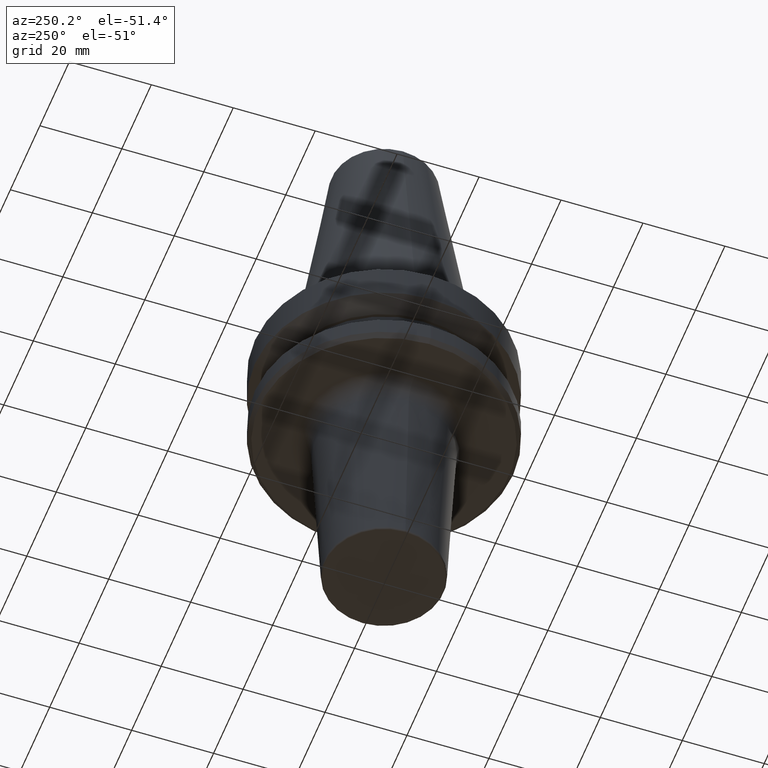
[diagram: clean part render]
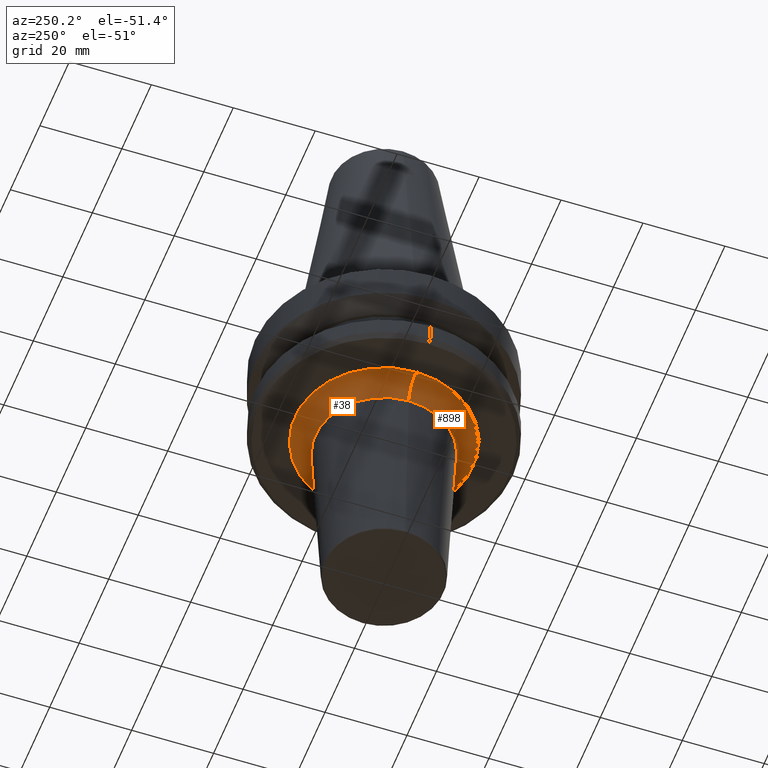
[diagram: same view with one multi-face feature highlighted, each face labeled with its STEP entity id]
A machine part, auxiliary view. The highlighted faces form ONE feature: a constant-radius fillet chain: 2 tangent blend faces with common blend radius 5 mm. The faces share edges in the B-rep.
Their STEP definitions:
[1] entity #38 (Torus):
#5 = TOROIDAL_SURFACE ( 'NONE', #194, 21.75624609862519400, 5.000000000000001800 ) ;
#38 = ADVANCED_FACE ( 'NONE', ( #896 ), #5, .F. ) ;
#45 = CIRCLE ( 'NONE', #431, 5.000000000000004400 ) ;
#56 = AXIS2_PLACEMENT_3D ( 'NONE', #448, #128, #523 ) ;
#79 = AXIS2_PLACEMENT_3D ( 'NONE', #597, #522, #126 ) ;
#106 = AXIS2_PLACEMENT_3D ( 'NONE', #244, #789, #818 ) ;
#126 = DIRECTION ( 'NONE',  ( 1.000000000000000000, 0.0000000000000000000, 0.0000000000000000000 ) ) ;
#128 = DIRECTION ( 'NONE',  ( 1.224646799147353200E-016, 1.000000000000000000, 0.0000000000000000000 ) ) ;
#149 = CARTESIAN_POINT ( 'NONE',  ( -21.75624609862519400, 2.664371714614343700E-015, -92.40000000000802100 ) ) ;
#194 = AXIS2_PLACEMENT_3D ( 'NONE', #735, #906, #328 ) ;
#205 = EDGE_CURVE ( 'NONE', #300, #855, #45, .T. ) ;
#244 = CARTESIAN_POINT ( 'NONE',  ( 0.0000000000000000000, 0.0000000000000000000, -92.40000000000802100 ) ) ;
#247 = VERTEX_POINT ( 'NONE', #149 ) ;
#256 = EDGE_LOOP ( 'NONE', ( #885, #396, #639, #710 ) ) ;
#300 = VERTEX_POINT ( 'NONE', #340 ) ;
#328 = DIRECTION ( 'NONE',  ( 1.000000000000000000, 0.0000000000000000000, 0.0000000000000000000 ) ) ;
#332 = CARTESIAN_POINT ( 'NONE',  ( -16.76248440423597300, 2.358592000877421900E-015, -97.15031191528855500 ) ) ;
#340 = CARTESIAN_POINT ( 'NONE',  ( 21.75624609862519400, 0.0000000000000000000, -92.40000000000802100 ) ) ;
#364 = CARTESIAN_POINT ( 'NONE',  ( 16.76248440423597300, 0.0000000000000000000, -97.15031191528855500 ) ) ;
#396 = ORIENTED_EDGE ( 'NONE', *, *, #401, .F. ) ;
#401 = EDGE_CURVE ( 'NONE', #300, #247, #670, .T. ) ;
#431 = AXIS2_PLACEMENT_3D ( 'NONE', #538, #528, #461 ) ;
#448 = CARTESIAN_POINT ( 'NONE',  ( -21.75624609862519400, 2.664371714614343700E-015, -97.40000000000802100 ) ) ;
#461 = DIRECTION ( 'NONE',  ( 0.0000000000000000000, 0.0000000000000000000, -1.000000000000000000 ) ) ;
#514 = CIRCLE ( 'NONE', #56, 5.000000000000000900 ) ;
#522 = DIRECTION ( 'NONE',  ( -0.0000000000000000000, -0.0000000000000000000, 1.000000000000000000 ) ) ;
#523 = DIRECTION ( 'NONE',  ( -1.000000000000000000, 1.224646799147353500E-016, 0.0000000000000000000 ) ) ;
#528 = DIRECTION ( 'NONE',  ( 0.0000000000000000000, -1.000000000000000000, 0.0000000000000000000 ) ) ;
#538 = CARTESIAN_POINT ( 'NONE',  ( 21.75624609862519400, 0.0000000000000000000, -97.40000000000802100 ) ) ;
#597 = CARTESIAN_POINT ( 'NONE',  ( 0.0000000000000000000, 0.0000000000000000000, -97.15031191528855500 ) ) ;
#621 = VERTEX_POINT ( 'NONE', #332 ) ;
#639 = ORIENTED_EDGE ( 'NONE', *, *, #205, .T. ) ;
#670 = CIRCLE ( 'NONE', #106, 21.75624609862519400 ) ;
#676 = EDGE_CURVE ( 'NONE', #855, #621, #679, .T. ) ;
#679 = CIRCLE ( 'NONE', #79, 16.76248440423597300 ) ;
#710 = ORIENTED_EDGE ( 'NONE', *, *, #676, .T. ) ;
#735 = CARTESIAN_POINT ( 'NONE',  ( 0.0000000000000000000, 0.0000000000000000000, -97.40000000000802100 ) ) ;
#789 = DIRECTION ( 'NONE',  ( -0.0000000000000000000, -0.0000000000000000000, 1.000000000000000000 ) ) ;
#818 = DIRECTION ( 'NONE',  ( 1.000000000000000000, 0.0000000000000000000, 0.0000000000000000000 ) ) ;
#855 = VERTEX_POINT ( 'NONE', #364 ) ;
#885 = ORIENTED_EDGE ( 'NONE', *, *, #889, .F. ) ;
#889 = EDGE_CURVE ( 'NONE', #247, #621, #514, .T. ) ;
#896 = FACE_OUTER_BOUND ( 'NONE', #256, .T. ) ;
#906 = DIRECTION ( 'NONE',  ( -0.0000000000000000000, -0.0000000000000000000, 1.000000000000000000 ) ) ;
[2] entity #898 (Torus):
#17 = CIRCLE ( 'NONE', #304, 21.75624609862519400 ) ;
#43 = DIRECTION ( 'NONE',  ( 1.000000000000000000, 0.0000000000000000000, 0.0000000000000000000 ) ) ;
#45 = CIRCLE ( 'NONE', #431, 5.000000000000004400 ) ;
#56 = AXIS2_PLACEMENT_3D ( 'NONE', #448, #128, #523 ) ;
#86 = EDGE_LOOP ( 'NONE', ( #1045, #281, #589, #453 ) ) ;
#128 = DIRECTION ( 'NONE',  ( 1.224646799147353200E-016, 1.000000000000000000, 0.0000000000000000000 ) ) ;
#149 = CARTESIAN_POINT ( 'NONE',  ( -21.75624609862519400, 2.664371714614343700E-015, -92.40000000000802100 ) ) ;
#169 = AXIS2_PLACEMENT_3D ( 'NONE', #850, #682, #43 ) ;
#205 = EDGE_CURVE ( 'NONE', #300, #855, #45, .T. ) ;
#247 = VERTEX_POINT ( 'NONE', #149 ) ;
#281 = ORIENTED_EDGE ( 'NONE', *, *, #889, .T. ) ;
#300 = VERTEX_POINT ( 'NONE', #340 ) ;
#304 = AXIS2_PLACEMENT_3D ( 'NONE', #459, #381, #531 ) ;
#332 = CARTESIAN_POINT ( 'NONE',  ( -16.76248440423597300, 2.358592000877421900E-015, -97.15031191528855500 ) ) ;
#340 = CARTESIAN_POINT ( 'NONE',  ( 21.75624609862519400, 0.0000000000000000000, -92.40000000000802100 ) ) ;
#364 = CARTESIAN_POINT ( 'NONE',  ( 16.76248440423597300, 0.0000000000000000000, -97.15031191528855500 ) ) ;
#381 = DIRECTION ( 'NONE',  ( -0.0000000000000000000, -0.0000000000000000000, 1.000000000000000000 ) ) ;
#395 = DIRECTION ( 'NONE',  ( 1.000000000000000000, 0.0000000000000000000, 0.0000000000000000000 ) ) ;
#431 = AXIS2_PLACEMENT_3D ( 'NONE', #538, #528, #461 ) ;
#448 = CARTESIAN_POINT ( 'NONE',  ( -21.75624609862519400, 2.664371714614343700E-015, -97.40000000000802100 ) ) ;
#453 = ORIENTED_EDGE ( 'NONE', *, *, #205, .F. ) ;
#459 = CARTESIAN_POINT ( 'NONE',  ( 0.0000000000000000000, 0.0000000000000000000, -92.40000000000802100 ) ) ;
#461 = DIRECTION ( 'NONE',  ( 0.0000000000000000000, 0.0000000000000000000, -1.000000000000000000 ) ) ;
#514 = CIRCLE ( 'NONE', #56, 5.000000000000000900 ) ;
#523 = DIRECTION ( 'NONE',  ( -1.000000000000000000, 1.224646799147353500E-016, 0.0000000000000000000 ) ) ;
#528 = DIRECTION ( 'NONE',  ( 0.0000000000000000000, -1.000000000000000000, 0.0000000000000000000 ) ) ;
#531 = DIRECTION ( 'NONE',  ( 1.000000000000000000, 0.0000000000000000000, 0.0000000000000000000 ) ) ;
#538 = CARTESIAN_POINT ( 'NONE',  ( 21.75624609862519400, 0.0000000000000000000, -97.40000000000802100 ) ) ;
#555 = DIRECTION ( 'NONE',  ( -0.0000000000000000000, -0.0000000000000000000, 1.000000000000000000 ) ) ;
#589 = ORIENTED_EDGE ( 'NONE', *, *, #1028, .T. ) ;
#621 = VERTEX_POINT ( 'NONE', #332 ) ;
#682 = DIRECTION ( 'NONE',  ( -0.0000000000000000000, -0.0000000000000000000, 1.000000000000000000 ) ) ;
#725 = FACE_OUTER_BOUND ( 'NONE', #86, .T. ) ;
#752 = AXIS2_PLACEMENT_3D ( 'NONE', #875, #555, #395 ) ;
#788 = EDGE_CURVE ( 'NONE', #247, #300, #17, .T. ) ;
#850 = CARTESIAN_POINT ( 'NONE',  ( 0.0000000000000000000, 0.0000000000000000000, -97.40000000000802100 ) ) ;
#855 = VERTEX_POINT ( 'NONE', #364 ) ;
#875 = CARTESIAN_POINT ( 'NONE',  ( 0.0000000000000000000, 0.0000000000000000000, -97.15031191528855500 ) ) ;
#889 = EDGE_CURVE ( 'NONE', #247, #621, #514, .T. ) ;
#898 = ADVANCED_FACE ( 'NONE', ( #725 ), #932, .F. ) ;
#932 = TOROIDAL_SURFACE ( 'NONE', #169, 21.75624609862519400, 5.000000000000001800 ) ;
#1028 = EDGE_CURVE ( 'NONE', #621, #855, #1034, .T. ) ;
#1034 = CIRCLE ( 'NONE', #752, 16.76248440423597300 ) ;
#1045 = ORIENTED_EDGE ( 'NONE', *, *, #788, .F. ) ;